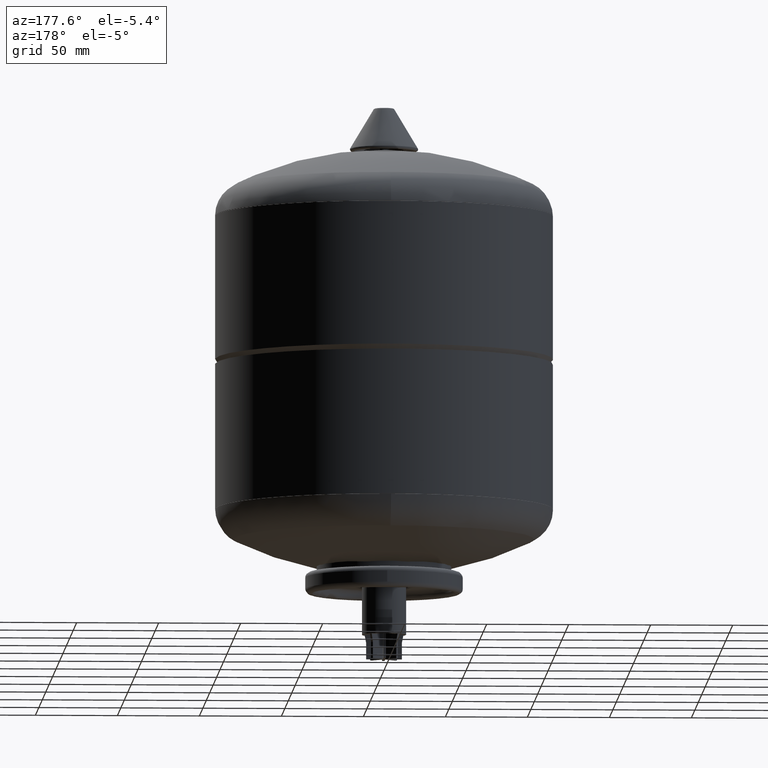
[diagram: clean part render]
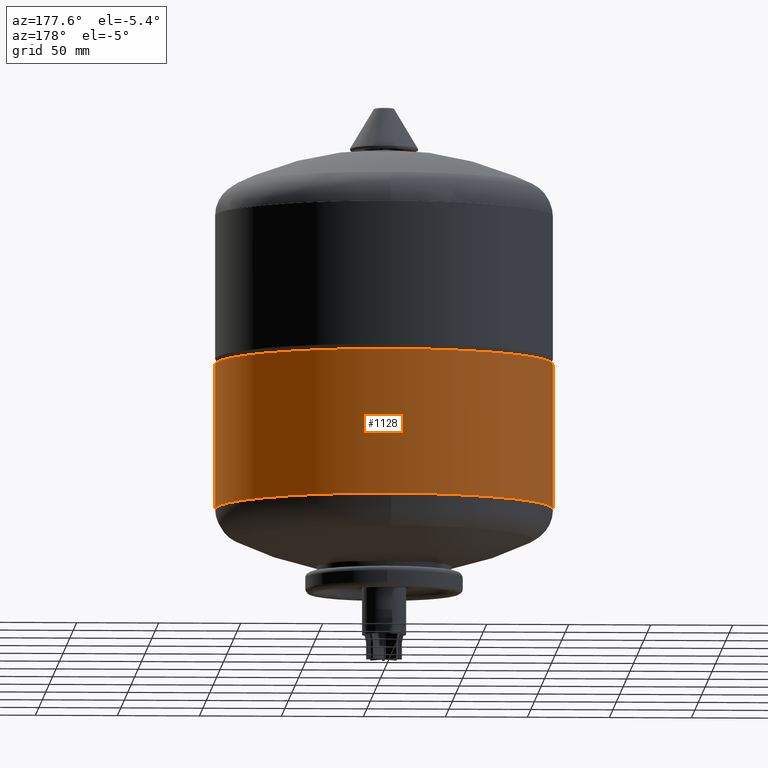
[diagram: same view with one face highlighted and labeled with its STEP entity id]
A machine part, auxiliary view. The second image highlights one B-rep face of the part: STEP entity #1128.
In plain terms, the highlighted cylindrical surface (partial cylindrical patch) has radius 103 mm, axis along (0, 0, 1).
Its self-contained STEP definition (entity closure, byte-faithful):
#992=CARTESIAN_POINT('',(102.999999999999990,0.0,180.499999999999970));
#993=VERTEX_POINT('',#992);
#994=CARTESIAN_POINT('',(102.999999999999970,0.0,91.999999999999943));
#995=VERTEX_POINT('',#994);
#996=CARTESIAN_POINT('',(102.999999999999990,0.0,180.499999999999970));
#997=DIRECTION('',(0.0,0.0,-1.0));
#998=VECTOR('',#997,88.500000000000028);
#999=LINE('',#996,#998);
#1000=EDGE_CURVE('',#993,#995,#999,.T.);
#1002=CARTESIAN_POINT('',(-102.999999999999970,-1.261345E-014,180.499999999999970));
#1003=VERTEX_POINT('',#1002);
#1011=CARTESIAN_POINT('',(-102.999999999999970,1.261345E-014,91.999999999999943));
#1012=VERTEX_POINT('',#1011);
#1013=CARTESIAN_POINT('',(-102.999999999999970,-1.261345E-014,180.499999999999970));
#1014=DIRECTION('',(0.0,0.0,-1.0));
#1015=VECTOR('',#1014,88.500000000000028);
#1016=LINE('',#1013,#1015);
#1017=EDGE_CURVE('',#1003,#1012,#1016,.T.);
#1100=CARTESIAN_POINT('',(0.0,0.0,91.999999999999943));
#1101=DIRECTION('',(0.0,0.0,-1.0));
#1102=DIRECTION('',(1.0,0.0,0.0));
#1103=AXIS2_PLACEMENT_3D('',#1100,#1101,#1102);
#1104=CIRCLE('',#1103,102.999999999999970);
#1105=EDGE_CURVE('',#1012,#995,#1104,.T.);
#1111=CARTESIAN_POINT('',(0.0,0.0,131.999999999999940));
#1112=DIRECTION('',(0.0,0.0,1.0));
#1113=DIRECTION('',(1.0,0.0,0.0));
#1114=AXIS2_PLACEMENT_3D('',#1111,#1112,#1113);
#1115=CYLINDRICAL_SURFACE('',#1114,102.999999999999970);
#1116=ORIENTED_EDGE('',*,*,#1000,.T.);
#1117=ORIENTED_EDGE('',*,*,#1105,.F.);
#1118=ORIENTED_EDGE('',*,*,#1017,.F.);
#1119=CARTESIAN_POINT('',(0.0,0.0,180.499999999999970));
#1120=DIRECTION('',(0.0,0.0,1.0));
#1121=DIRECTION('',(1.0,0.0,0.0));
#1122=AXIS2_PLACEMENT_3D('',#1119,#1120,#1121);
#1123=CIRCLE('',#1122,102.999999999999990);
#1124=EDGE_CURVE('',#993,#1003,#1123,.T.);
#1125=ORIENTED_EDGE('',*,*,#1124,.F.);
#1126=EDGE_LOOP('',(#1116,#1117,#1118,#1125));
#1127=FACE_OUTER_BOUND('',#1126,.T.);
#1128=ADVANCED_FACE('',(#1127),#1115,.T.);